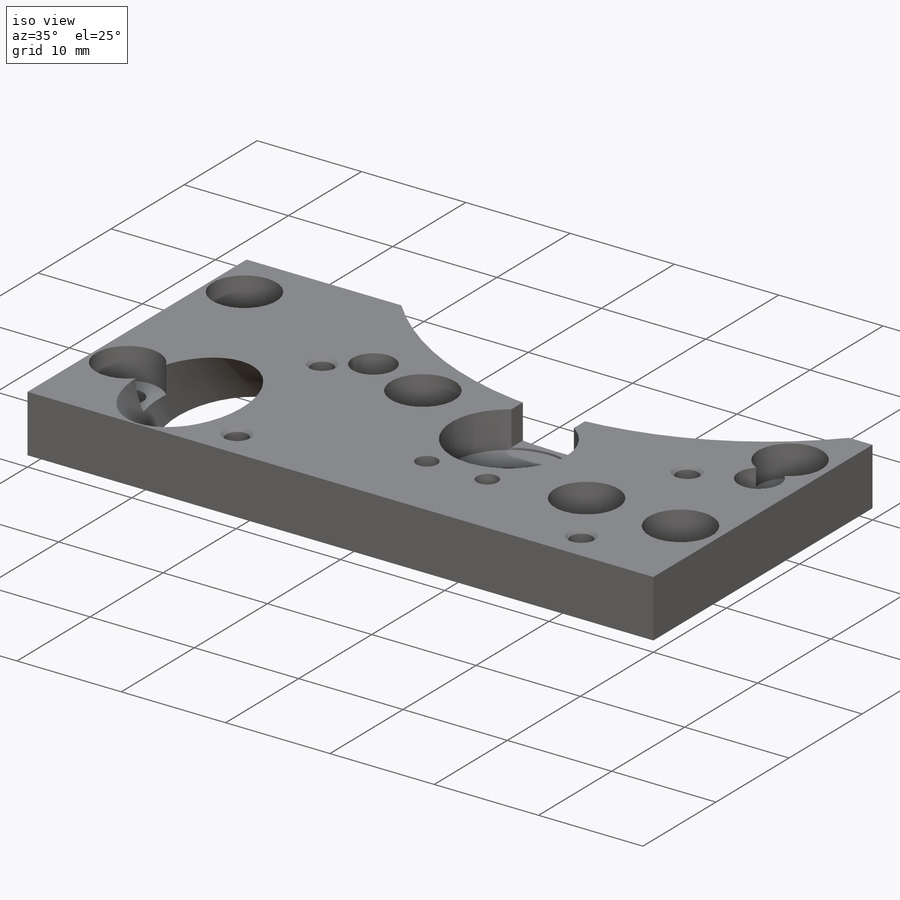
[diagram: iso view]
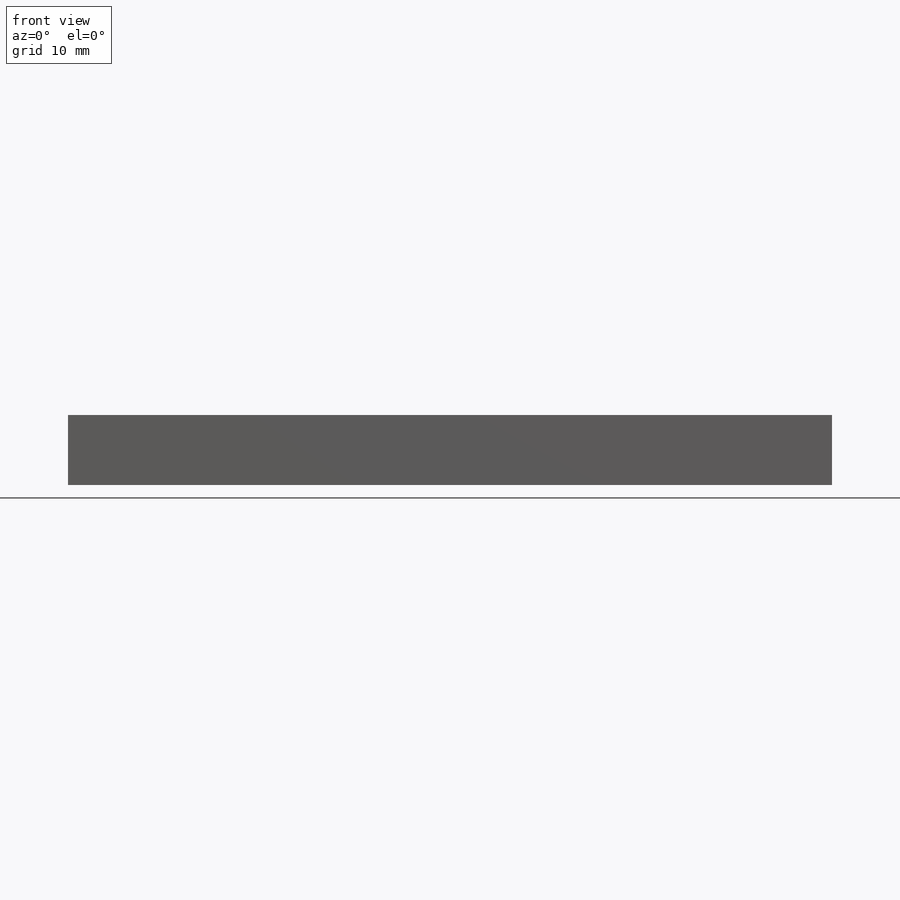
[diagram: front view]
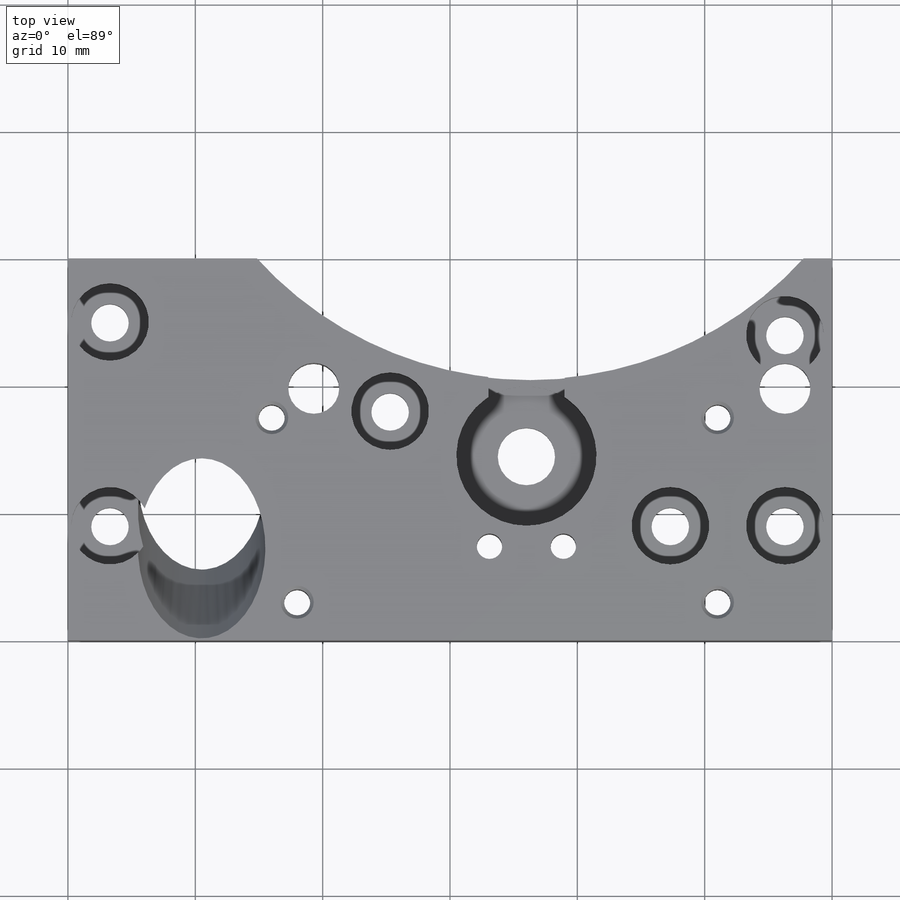
[diagram: top view]
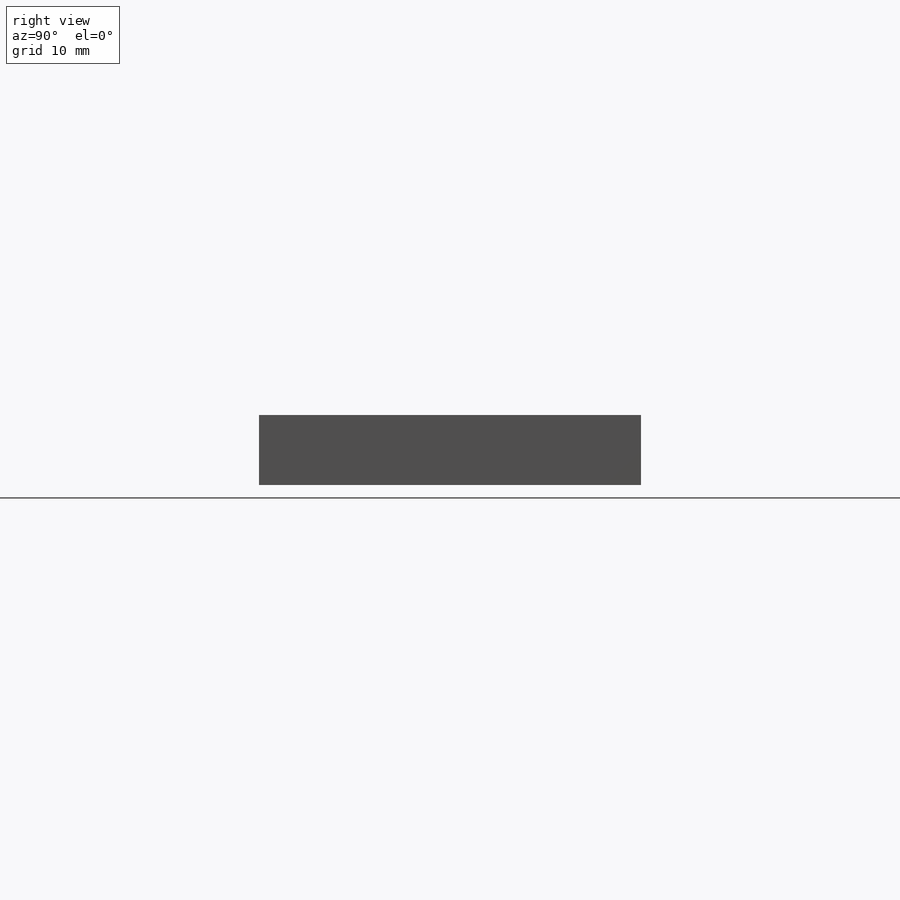
[diagram: right view]
SOLIDWORKS PART (.sldprt)
format: sldprt  version: not decoded by parser v0  size: 416,256 bytes
history: native  units: mm
features: sketch x9, plane x4, cut_extrude x4, thread x4, hole x2, material x1, extrude x1 (+13 scaffold rows collapsed)
feature tree (38):
  scaffold x13  (default folders/planes/origin — collapsed)
  material  "2024-T4"
  plane  "Спереди"
  plane  "Сверху"
  plane  "Справа"
  sketch  "Эскиз1"  dims[c1.D5=3.0mm c1.D1=30.0mm c1.D2=60.0mm c1.D3=~11.98753mm c2.D3=45.0deg c2.D4=8.0mm c3.D3=7.0mm c3.D5=11.0mm]
  extrude  "Бобышка-Вытянуть1"  Depth=5.5mm
  hole  "Цековка для  винта с внутренним шестигранником #41"  [1 undecoded]
  sketch  "Эскиз3"  dims[c1.D1=9.0mm c1.D2=3.5mm c1.D3=22.0mm c1.D4=18.0mm c2.D1=22.0mm c2.D2=3.5mm c2.D3=4.0mm c2.D4=9.0mm c2.D5=14.0mm c3.D2=10.0mm c3.D3=3.3mm c4.D2=9.0mm c4.D5=22.0mm c4.D6=53.0mm c4.D7=16.0mm c5.D6=9.0mm c5.D8=15.0mm]
  sketch  "Эскиз2"  dims[hole-wizard template sketch: 41 standard entries collapsed; hole parameters kept: c12.Диаметр сквозного отверстия=2.9464mm c12.Глубина сквозного отверстия=5.5mm c12.Диаметр цековки=5.588mm c12.Глубина цековки=2.9972mm]
  sketch  "Эскиз4"  dims[c1.D1=4.5mm c1.D2=11.0mm c1.D3=3.0mm c1.D4=2.9464mm c1.D5=6.0mm c1.D6=6.0mm c1.D7=6.0mm c1.D8=2.5mm c1.D9=29.0mm c1.D10=3.0mm c1.D11=27.0mm c1.D12=27.0mm c1.D13=2.5mm c1.D14=2.0mm c1.D15=2.0mm c1.D16=2.0mm c1.D17=2.0mm c2.D12=4.0mm c2.D20=5.0mm c2.D21=5.0mm c2.D22=5.0mm c2.D8=4.0mm c2.D3=4.0mm c2.D4=2.9464mm c3.D3=10.7mm c3.D4=3.5mm c3.D6=16.0mm c3.D7=2.0mm c3.D10=16.7mm c3.D11=0.3mm c3.D12=38.0mm c3.D13=1.8mm c3.D15=7.1mm c3.D16=2.9mm c3.D17=5.8mm c4.D12=21.0mm c4.D18=2.0mm c5.D12=35.0mm c5.D18=3.0mm c5.D19=3.0mm c5.D20=24.0mm c5.D21=37.0mm c5.D22=0.0mm c5.D3=3.5mm c5.D4=10.7mm]
  cut_extrude  "Вырез-Вытянуть1"  [1 undecoded]
  cut_extrude  "Вырез-Вытянуть2"  [1 undecoded]
  sketch  "Эскиз4<3>"  dims[D1=2.0mm]
  cut_extrude  "Вырез-Вытянуть3"  [1 undecoded]
  sketch  "Эскиз4<4>"  dims[D1=0.2mm]
  hole  "M3_для_платы"  [1 undecoded]
  sketch  "Эскиз6"  dims[c1.D3=5.5mm c1.D1=14.5mm c1.D2=36.0mm c2.D3=15.0mm c2.D4=3.0mm c2.D2=35.0mm c2.D1=14.5mm c2.D5=33.0mm]
  sketch  "Эскиз5"  dims[hole-wizard template sketch: 47 standard entries collapsed; hole parameters kept: c15.Глубина проходного сверла=5.5mm c15.Диаметр передней зенковки=3.05mm c15.D4=~3.666174mm c15.Угол передней зенковки=90.0deg c15.Диаметр задней зенковки=3.05mm c15.D6=~9.919017mm c15.Угол задней зенковки=90.0deg]
  thread  "Отверстие резьбы1"  Diameter=3mm  [1 undecoded]
  thread  "Отверстие резьбы2"  Diameter=3mm  [1 undecoded]
  thread  "Отверстие резьбы3"  Diameter=3mm  [1 undecoded]
  thread  "Отверстие резьбы4"  Diameter=3mm  [1 undecoded]
  plane  "Плоскость1"
  sketch  "Эскиз7"  dims[c1.D1=~7.154058mm c1.D3=10.0mm c2.D1=10.5mm c2.D2=9.0mm]
  cut_extrude  "Вырез-Вытянуть4"  Depth=43.267491mm 5=43.267491mm
decode coverage: 15 of 20 modeling features carry decoded parameters
note: ~ marks probable driven/reference dimensions
note: 9 parameter values undecoded
summary: no parameter record found for 5 features
note: suppression state not decoded; provenance and decode notes live in map.json
